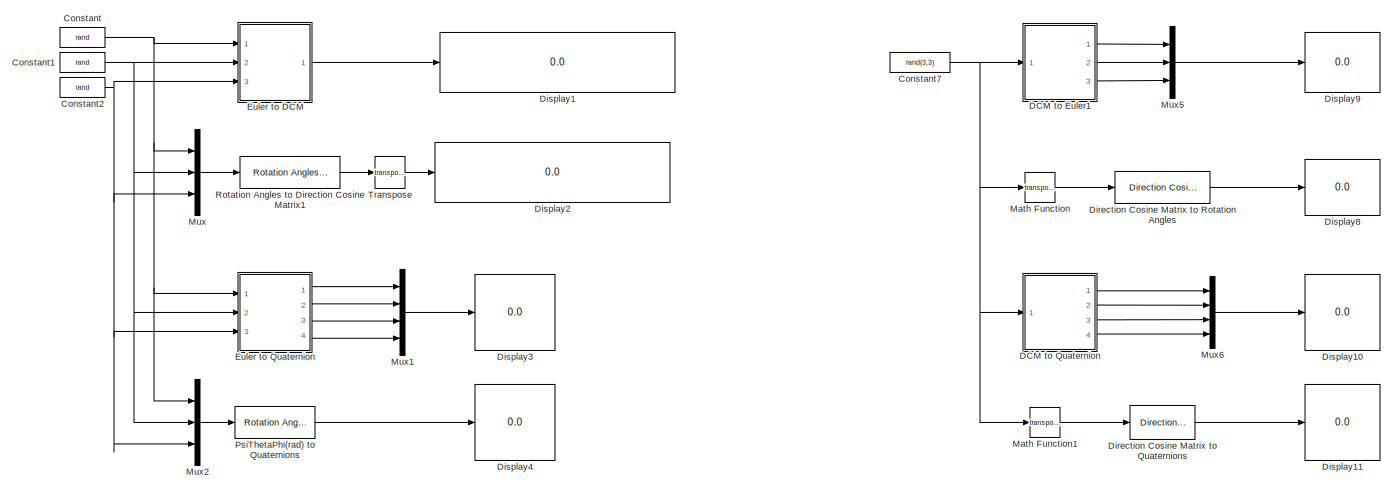
[diagram: root canvas - part 1/2, left side, full height]
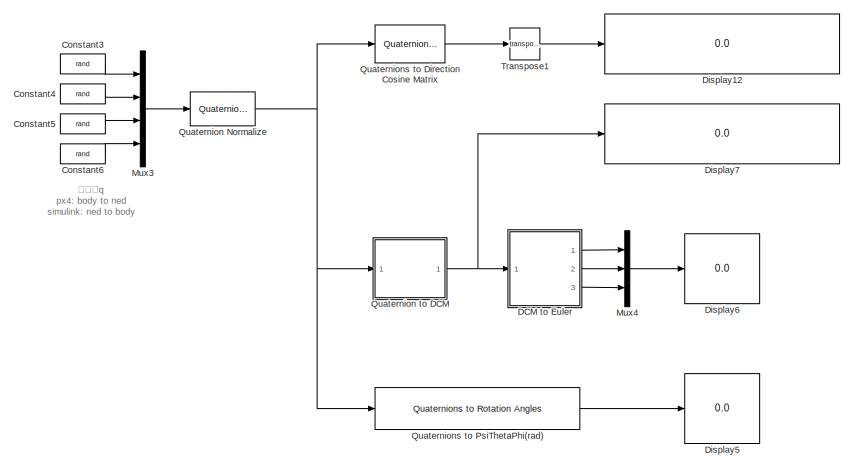
[diagram: root canvas - part 2/2, right side, full height]
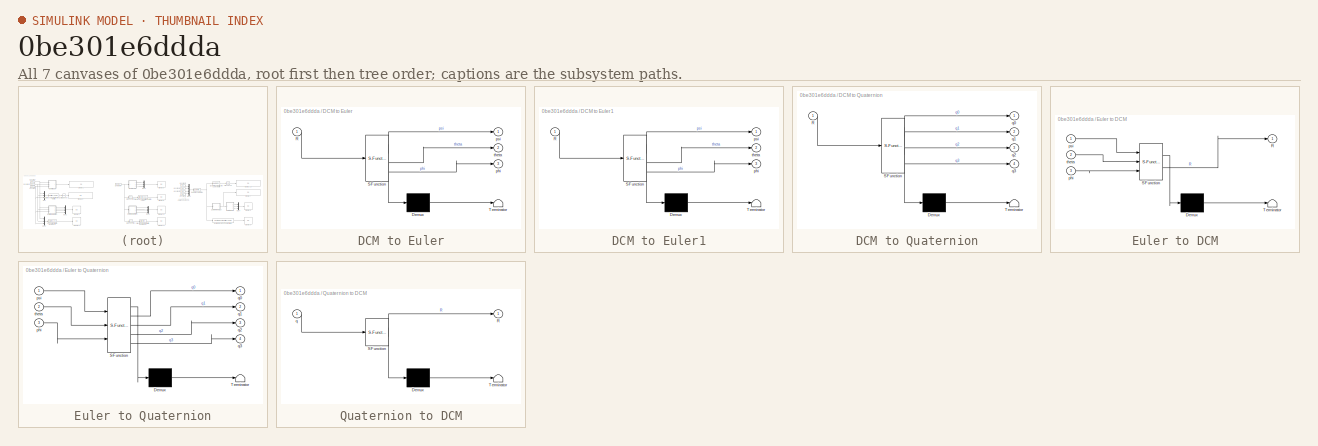
[diagram: thumbnail index - all 7 canvases of the model, root first then tree order]
MODEL slx_0be301e6ddda
KIND model
CONFIG AbsTol = auto
CONFIG EnableMultiTasking = off
CONFIG FixedStep = auto
CONFIG MaxStep = auto
CONFIG MinStep = auto
CONFIG RelTol = 1e-3
CONFIG SampleTimeConstraint = Unconstrained
CONFIG SolverName = VariableStepAuto
CONFIG StartTime = 0.0
CONFIG StopTime = 10.0
BLOCK [Constant] Constant
  Value = rand
BLOCK [Constant] Constant1
  Value = rand
BLOCK [Constant] Constant2
  Value = rand
BLOCK [Constant] Constant3
  Value = rand
BLOCK [Constant] Constant4
  Value = rand
BLOCK [Constant] Constant5
  Value = rand
BLOCK [Constant] Constant6
  Value = rand
BLOCK [Constant] Constant7
  Value = rand(3,3)
BLOCK [SubSystem] DCM to Euler
  ErrorFcn = Stateflow.Translate.translate
  PermitHierarchicalResolution = ExplicitOnly
  Ports = [1, 3]
  RequestExecContextInheritance = off
  SFBlockType = MATLAB Function
  TreatAsAtomicUnit = on
BLOCK [Demux] DCM to Euler/ Demux 
  Outputs = 1
  Ports = [1, 1]
BLOCK [S-Function] DCM to Euler/ SFunction 
  EnableBusSupport = on
  FunctionName = sf_sfun
  PortCounts = [1 4]
  Ports = [1, 4]
  SFcnIsStateOwnerBlock = off
  SFunctionDeploymentMode = off
  Tag = Stateflow S-Function 6
BLOCK [Terminator] DCM to Euler/ Terminator 
BLOCK [Inport] DCM to Euler/R
BLOCK [Outport] DCM to Euler/phi
  Port = 3
BLOCK [Outport] DCM to Euler/psi
BLOCK [Outport] DCM to Euler/theta
  Port = 2
BLOCK [SubSystem] DCM to Euler1
  ErrorFcn = Stateflow.Translate.translate
  PermitHierarchicalResolution = ExplicitOnly
  Ports = [1, 3]
  RequestExecContextInheritance = off
  SFBlockType = MATLAB Function
  TreatAsAtomicUnit = on
BLOCK [Demux] DCM to Euler1/ Demux 
  Outputs = 1
  Ports = [1, 1]
BLOCK [S-Function] DCM to Euler1/ SFunction 
  EnableBusSupport = on
  FunctionName = sf_sfun
  PortCounts = [1 4]
  Ports = [1, 4]
  SFcnIsStateOwnerBlock = off
  SFunctionDeploymentMode = off
  Tag = Stateflow S-Function 4
BLOCK [Terminator] DCM to Euler1/ Terminator 
BLOCK [Inport] DCM to Euler1/R
BLOCK [Outport] DCM to Euler1/phi
  Port = 3
BLOCK [Outport] DCM to Euler1/psi
BLOCK [Outport] DCM to Euler1/theta
  Port = 2
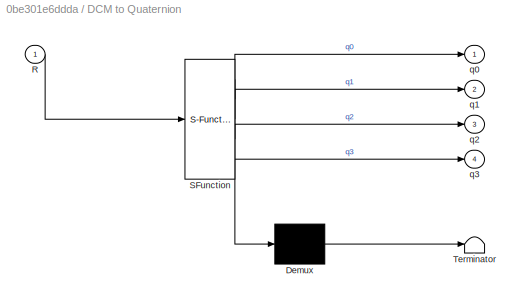
BLOCK [SubSystem] DCM to Quaternion
  ErrorFcn = Stateflow.Translate.translate
  PermitHierarchicalResolution = ExplicitOnly
  Ports = [1, 4]
  RequestExecContextInheritance = off
  SFBlockType = MATLAB Function
  TreatAsAtomicUnit = on
BLOCK [Demux] DCM to Quaternion/ Demux 
  Outputs = 1
  Ports = [1, 1]
BLOCK [S-Function] DCM to Quaternion/ SFunction 
  EnableBusSupport = on
  FunctionName = sf_sfun
  PortCounts = [1 5]
  Ports = [1, 5]
  SFcnIsStateOwnerBlock = off
  SFunctionDeploymentMode = off
  Tag = Stateflow S-Function 2
BLOCK [Terminator] DCM to Quaternion/ Terminator 
BLOCK [Inport] DCM to Quaternion/R
BLOCK [Outport] DCM to Quaternion/q0
BLOCK [Outport] DCM to Quaternion/q1
  Port = 2
BLOCK [Outport] DCM to Quaternion/q2
  Port = 3
BLOCK [Outport] DCM to Quaternion/q3
  Port = 4
BLOCK [Reference] Direction Cosine Matrix to Quaternions  REF=sharedtransform/Direction Cosine Matrix 
to Quaternions
  Ports = [1, 1]
  SourceBlock = sharedtransform/Direction Cosine Matrix \nto Quaternions
  SourceProductBaseCode = AE,PW,DR,MT,UV,VE
  SourceType = DCM2Quaternion
BLOCK [Reference] Direction Cosine Matrix to Rotation Angles  REF=sharedtransform/Direction Cosine Matrix
to Rotation Angles
  AttributesFormatString = Rotation Order: %<rotationOrder>
  Ports = [1, 1]
  SourceBlock = sharedtransform/Direction Cosine Matrix\nto Rotation Angles
  SourceProductBaseCode = AE,PW,DR,MT,UV,VE
  SourceType = DCM2Ang
BLOCK [Display] Display1
  Decimation = 1
  Ports = [1]
BLOCK [Display] Display10
  Decimation = 1
  Ports = [1]
BLOCK [Display] Display11
  Decimation = 1
  Ports = [1]
BLOCK [Display] Display12
  Decimation = 1
  Ports = [1]
BLOCK [Display] Display2
  Decimation = 1
  Ports = [1]
BLOCK [Display] Display3
  Decimation = 1
  Ports = [1]
BLOCK [Display] Display4
  Decimation = 1
  Ports = [1]
BLOCK [Display] Display5
  Decimation = 1
  Ports = [1]
BLOCK [Display] Display6
  Decimation = 1
  Ports = [1]
BLOCK [Display] Display7
  Decimation = 1
  Ports = [1]
BLOCK [Display] Display8
  Decimation = 1
  Ports = [1]
BLOCK [Display] Display9
  Decimation = 1
  Ports = [1]
BLOCK [SubSystem] Euler to DCM
  ErrorFcn = Stateflow.Translate.translate
  PermitHierarchicalResolution = ExplicitOnly
  Ports = [3, 1]
  RequestExecContextInheritance = off
  SFBlockType = MATLAB Function
  TreatAsAtomicUnit = on
BLOCK [Demux] Euler to DCM/ Demux 
  Outputs = 1
  Ports = [1, 1]
BLOCK [S-Function] Euler to DCM/ SFunction 
  EnableBusSupport = on
  FunctionName = sf_sfun
  PortCounts = [3 2]
  Ports = [3, 2]
  SFcnIsStateOwnerBlock = off
  SFunctionDeploymentMode = off
  Tag = Stateflow S-Function 1
BLOCK [Terminator] Euler to DCM/ Terminator 
BLOCK [Outport] Euler to DCM/R
BLOCK [Inport] Euler to DCM/phi
  Port = 3
BLOCK [Inport] Euler to DCM/psi
BLOCK [Inport] Euler to DCM/theta
  Port = 2
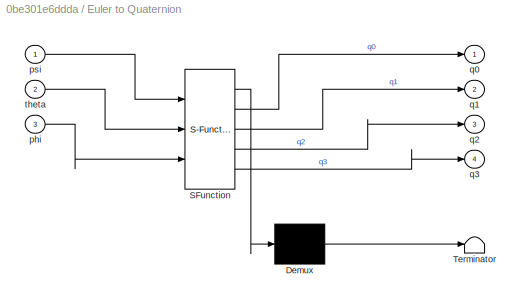
BLOCK [SubSystem] Euler to Quaternion
  ErrorFcn = Stateflow.Translate.translate
  PermitHierarchicalResolution = ExplicitOnly
  Ports = [3, 4]
  RequestExecContextInheritance = off
  SFBlockType = MATLAB Function
  TreatAsAtomicUnit = on
BLOCK [Demux] Euler to Quaternion/ Demux 
  Outputs = 1
  Ports = [1, 1]
BLOCK [S-Function] Euler to Quaternion/ SFunction 
  EnableBusSupport = on
  FunctionName = sf_sfun
  PortCounts = [3 5]
  Ports = [3, 5]
  SFcnIsStateOwnerBlock = off
  SFunctionDeploymentMode = off
  Tag = Stateflow S-Function 3
BLOCK [Terminator] Euler to Quaternion/ Terminator 
BLOCK [Inport] Euler to Quaternion/phi
  Port = 3
BLOCK [Inport] Euler to Quaternion/psi
BLOCK [Outport] Euler to Quaternion/q0
BLOCK [Outport] Euler to Quaternion/q1
  Port = 2
BLOCK [Outport] Euler to Quaternion/q2
  Port = 3
BLOCK [Outport] Euler to Quaternion/q3
  Port = 4
BLOCK [Inport] Euler to Quaternion/theta
  Port = 2
BLOCK [Math] Math Function
  Operator = transpose
  Ports = [1, 1]
BLOCK [Math] Math Function1
  Operator = transpose
  Ports = [1, 1]
BLOCK [Mux] Mux
  DisplayOption = bar
  Inputs = 3
  Ports = [3, 1]
BLOCK [Mux] Mux1
  DisplayOption = bar
  Ports = [4, 1]
BLOCK [Mux] Mux2
  DisplayOption = bar
  Inputs = 3
  Ports = [3, 1]
BLOCK [Mux] Mux3
  DisplayOption = bar
  Ports = [4, 1]
BLOCK [Mux] Mux4
  DisplayOption = bar
  Inputs = 3
  Ports = [3, 1]
BLOCK [Mux] Mux5
  DisplayOption = bar
  Inputs = 3
  Ports = [3, 1]
BLOCK [Mux] Mux6
  DisplayOption = bar
  Ports = [4, 1]
BLOCK [Reference] PsiThetaPhi(rad) to Quaternions  REF=sharedtransform/Rotation Angles to Quaternions
  AttributesFormatString = Rotation Order: %<rotationOrder>
  Ports = [1, 1]
  SourceBlock = sharedtransform/Rotation Angles to Quaternions
  SourceProductBaseCode = AE,PW,DR,MT,UV,VE
  SourceType = Ang2Quat
BLOCK [Reference] Quaternion Normalize  REF=sharedutil/Quaternion
Normalize
  Ports = [1, 1]
  SourceBlock = sharedutil/Quaternion\nNormalize
  SourceProductBaseCode = AE,PW,DR,MT,UV,VE
  SourceType = Quaternion Normalize
BLOCK [SubSystem] Quaternion to DCM
  ErrorFcn = Stateflow.Translate.translate
  PermitHierarchicalResolution = ExplicitOnly
  Ports = [1, 1]
  RequestExecContextInheritance = off
  SFBlockType = MATLAB Function
  TreatAsAtomicUnit = on
BLOCK [Demux] Quaternion to DCM/ Demux 
  Outputs = 1
  Ports = [1, 1]
BLOCK [S-Function] Quaternion to DCM/ SFunction 
  EnableBusSupport = on
  FunctionName = sf_sfun
  PortCounts = [1 2]
  Ports = [1, 2]
  SFcnIsStateOwnerBlock = off
  SFunctionDeploymentMode = off
  Tag = Stateflow S-Function 5
BLOCK [Terminator] Quaternion to DCM/ Terminator 
BLOCK [Outport] Quaternion to DCM/R
BLOCK [Inport] Quaternion to DCM/q
BLOCK [Reference] Quaternions to Direction Cosine Matrix  REF=sharedtransform/Quaternions to 
Direction Cosine Matrix
  Ports = [1, 1]
  SourceBlock = sharedtransform/Quaternions to \nDirection Cosine Matrix
  SourceProductBaseCode = AE,PW,DR,MT,UV,VE
  SourceType = Quaternion2DCM
BLOCK [Reference] Quaternions to PsiThetaPhi(rad)  REF=sharedtransform/Quaternions to Rotation Angles
  AttributesFormatString = Rotation Order: %<rotationOrder>
  Ports = [1, 1]
  SourceBlock = sharedtransform/Quaternions to Rotation Angles
  SourceProductBaseCode = AE,PW,DR,MT,UV,VE
  SourceType = Quat2Ang
BLOCK [Reference] Rotation Angles to Direction Cosine Matrix1  REF=sharedtransform/Rotation Angles to
Direction Cosine Matrix
  AttributesFormatString = Rotation Order: %<rotationOrder>
  Ports = [1, 1]
  SourceBlock = sharedtransform/Rotation Angles to\nDirection Cosine Matrix
  SourceProductBaseCode = AE,PW,DR,MT,UV,VE
  SourceType = Ang2DCM
BLOCK [Math] Transpose
  Operator = transpose
  Ports = [1, 1]
BLOCK [Math] Transpose1
  Operator = transpose
  Ports = [1, 1]
ANNOTATION (root): 同一个q px4: body to ned simulink: ned to body
NET Constant1:1 -> Euler to DCM:2, Euler to Quaternion:2, Mux2:2, Mux:2
NET Constant2:1 -> Euler to DCM:3, Euler to Quaternion:3, Mux2:3, Mux:3
LINE Constant3:1 -> Mux3:1
LINE Constant4:1 -> Mux3:2
LINE Constant5:1 -> Mux3:3
LINE Constant6:1 -> Mux3:4
NET Constant7:1 -> DCM to Euler1:1, DCM to Quaternion:1, Math Function1:1, Math Function:1
NET Constant:1 -> Euler to DCM:1, Euler to Quaternion:1, Mux2:1, Mux:1
LINE DCM to Euler1:1 -> Mux5:1
LINE DCM to Euler1:2 -> Mux5:2
LINE DCM to Euler1:3 -> Mux5:3
LINE DCM to Euler:1 -> Mux4:1
LINE DCM to Euler:2 -> Mux4:2
LINE DCM to Euler:3 -> Mux4:3
LINE DCM to Quaternion:1 -> Mux6:1
LINE DCM to Quaternion:2 -> Mux6:2
LINE DCM to Quaternion:3 -> Mux6:3
LINE DCM to Quaternion:4 -> Mux6:4
LINE Direction Cosine Matrix to Quaternions:1 -> Display11:1
LINE Direction Cosine Matrix to Rotation Angles:1 -> Display8:1
LINE Euler to DCM:1 -> Display1:1
LINE Euler to Quaternion:1 -> Mux1:1
LINE Euler to Quaternion:2 -> Mux1:2
LINE Euler to Quaternion:3 -> Mux1:3
LINE Euler to Quaternion:4 -> Mux1:4
LINE Math Function1:1 -> Direction Cosine Matrix to Quaternions:1
LINE Math Function:1 -> Direction Cosine Matrix to Rotation Angles:1
LINE Mux1:1 -> Display3:1
LINE Mux2:1 -> PsiThetaPhi(rad) to Quaternions:1
LINE Mux3:1 -> Quaternion Normalize:1
LINE Mux4:1 -> Display6:1
LINE Mux5:1 -> Display9:1
LINE Mux6:1 -> Display10:1
LINE Mux:1 -> Rotation Angles to Direction Cosine Matrix1:1
LINE PsiThetaPhi(rad) to Quaternions:1 -> Display4:1
NET Quaternion Normalize:1 -> Quaternion to DCM:1, Quaternions to Direction Cosine Matrix:1, Quaternions to PsiThetaPhi(rad):1
NET Quaternion to DCM:1 -> DCM to Euler:1, Display7:1
LINE Quaternions to Direction Cosine Matrix:1 -> Transpose1:1
LINE Quaternions to PsiThetaPhi(rad):1 -> Display5:1
LINE Rotation Angles to Direction Cosine Matrix1:1 -> Transpose:1
LINE Transpose1:1 -> Display12:1
LINE Transpose:1 -> Display2:1
note: NET lines group one-source signal fan-out (src -> all destinations, sorted); 1:1 wires keep LINE
CHART Euler to DCM states=1 transitions=1
  STATE_LABEL 'eML_blk_kernel()'
  STATE_LABEL 'SCRIPT:\nfunction R = fcn(psi,theta,phi)\n\nR = zeros(3,3);\n\ncosPhi = cos(phi);\nsinPhi = sin(phi);\ncosThe = cos(theta);\nsinThe = sin(theta);\ncosPsi = cos(psi);\nsinPsi = sin(psi);\n\nR(1, 1) = cosThe * cosPsi;\nR(1, 2) = -cosPhi * sinPsi + sinPhi * sinThe * cosPsi;\nR(1, 3) = sinPhi * sinPsi + cosPhi * sinThe * cosPsi;\n\nR(2, 1) = cosThe * sinPsi;\nR(2, 2) = cosPhi * cosPsi + sinPhi * sinThe * sinPsi;\nR(2, ...<+129ch>'
CHART DCM to Quaternion states=1 transitions=1
  STATE_LABEL 'eML_blk_kernel()'
  STATE_LABEL 'SCRIPT:\nfunction [q0,q1,q2,q3] = fcn(R)\n\nt1 = R(1,1) + R(2,2) + R(3,3);\n\nif t1 > 0\n    t = sqrt(1 + t1);\n    q0 = 0.5 * t;\n    t = 0.5 / t;\n    q1 = (R(3,2) - R(2,3)) * t;\n    q2 = (R(1,3) - R(3,1)) * t;\n    q3 = (R(2,1) - R(1,2)) * t;\n    \nelseif (R(1,1) > R(2,2)) && (R(1,1) > R(3,3))\n    t = sqrt(1 + R(1,1) - R(2,2) - R(3,3));\n    q1 = 0.5 * t;\n    t = 0.5 / t;\n    q0 = (R(3,2) - R(2,3)) * t;\n  ...<+464ch>'
CHART Euler to Quaternion states=1 transitions=1
  STATE_LABEL 'eML_blk_kernel()'
  STATE_LABEL 'SCRIPT:\nfunction [q0,q1,q2,q3] = fcn(psi,theta,phi)\n\ncosPhi_2 = cos(phi / 2);\ncosTheta_2 = cos(theta / 2);\ncosPsi_2 = cos(psi / 2);\nsinPhi_2 = sin(phi / 2);\nsinTheta_2 = sin(theta / 2);\nsinPsi_2 = sin(psi / 2);\n\nq0 = cosPhi_2 * cosTheta_2 * cosPsi_2 + sinPhi_2 * sinTheta_2 * sinPsi_2;\nq1 = sinPhi_2 * cosTheta_2 * cosPsi_2 - cosPhi_2 * sinTheta_2 * sinPsi_2;\nq2 = cosPhi_2 * sinTheta_2 * cosPsi_2 + ...<+113ch>'
CHART DCM to Euler1 states=1 transitions=1
  STATE_LABEL 'eML_blk_kernel()'
  STATE_LABEL 'SCRIPT:\nfunction [psi,theta,phi] = fcn(R)\n\ntheta = asin(-R(3,1));\n\nif (abs(theta - pi/2)) < 1e-3\n    phi = 0;\n    psi = atan2(R(2, 3), R(1, 3));\n    \nelseif (abs(theta + pi/2)) < 1e-3\n    phi = 0;\n    psi = atan2(-R(2, 3), -R(1, 3));\n    \nelse\n    phi = atan2(R(3, 2), R(3, 3));\n    psi = atan2(R(2, 1), R(1, 1));\n    \nend\n\nend\n'
CHART Quaternion to DCM states=1 transitions=1
  STATE_LABEL 'eML_blk_kernel()'
  STATE_LABEL 'SCRIPT:\nfunction R = fcn(q)\n\nR = zeros(3,3);\n\na = q(1);\nb = q(2);\nc = q(3);\nd = q(4);\n\naa = a * a;\nab = a * b;\nac = a * c;\nad = a * d;\nbb = b * b;\nbc = b * c;\nbd = b * d;\ncc = c * c;\ncd = c * d;\ndd = d * d;\n\nR(1, 1) = aa + bb - cc - dd;\nR(1, 2) = 2 * (bc - ad);\nR(1, 3) = 2 * (ac + bd);\nR(2, 1) = 2 * (bc + ad);\nR(2, 2) = aa - bb + cc - dd;\nR(2, 3) = 2 * (cd - ab);\nR(3, 1) = 2 * (bd - ac);\nR(3, 2) =...<+50ch>'
CHART DCM to Euler states=1 transitions=1
  STATE_LABEL 'eML_blk_kernel()'
  STATE_LABEL 'SCRIPT:\nfunction [psi,theta,phi] = fcn(R)\n\ntheta = asin(-R(3,1));\n\nif (abs(theta - pi/2)) < 1e-3\n    phi = 0;\n    psi = atan2(R(2, 3), R(1, 3));\n    \nelseif (abs(theta + pi/2)) < 1e-3\n    phi = 0;\n    psi = atan2(-R(2, 3), -R(1, 3));\n    \nelse\n    phi = atan2(R(3, 2), R(3, 3));\n    psi = atan2(R(2, 1), R(1, 1));\n    \nend\n\nend\n'
CHART  states=0 transitions=0
CHART  states=0 transitions=0
CHART  states=0 transitions=0
CHART  states=0 transitions=0
CHART  states=0 transitions=0
CHART  states=0 transitions=0
